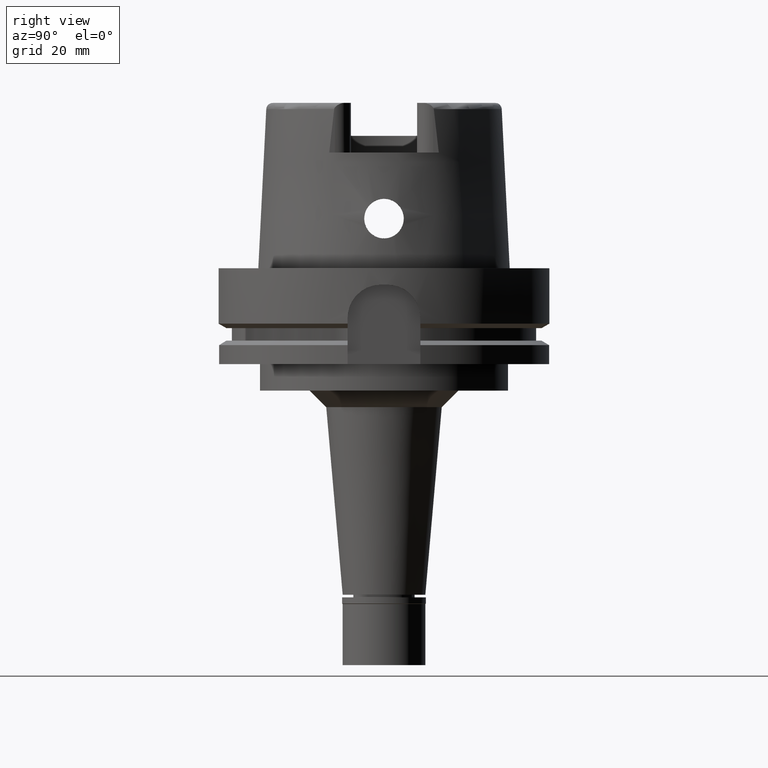
[diagram: clean part render]
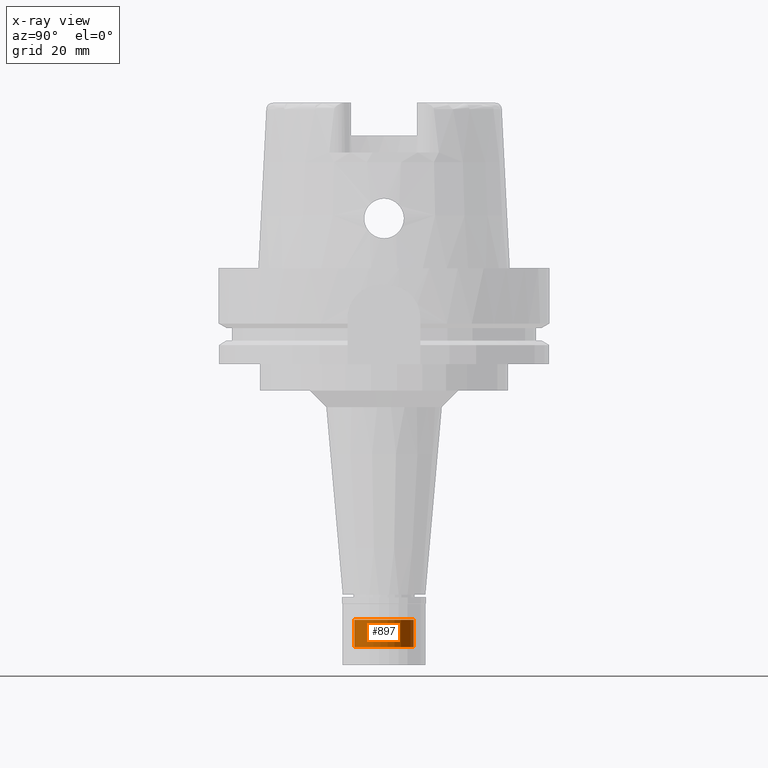
[diagram: x-ray — body ghosted, one internal face saturated and labeled with its STEP entity id]
A machine part, right view, then the same camera in x-ray: the body is ghosted and one INTERNAL B-rep face — a face not visible from any outside direction — is saturated and labeled: STEP entity #897.
In plain terms, the highlighted cylindrical surface (edge-blend (fillet) strip) has radius 9 mm, axis along (0, 0, -1).
Its self-contained STEP definition (entity closure, byte-faithful):
#74 = CARTESIAN_POINT ( 'NONE',  ( 0.0000000000000000000, 9.000000000000000000, -6.799999999999999822 ) ) ;
#142 = ORIENTED_EDGE ( 'NONE', *, *, #5465, .T. ) ;
#163 = EDGE_CURVE ( 'NONE', #950, #4541, #3006, .T. ) ;
#638 = VERTEX_POINT ( 'NONE', #4405 ) ;
#640 = CARTESIAN_POINT ( 'NONE',  ( 0.0000000000000000000, 0.0000000000000000000, 0.0000000000000000000 ) ) ;
#677 = DIRECTION ( 'NONE',  ( 0.0000000000000000000, -1.000000000000000000, 0.0000000000000000000 ) ) ;
#692 = ORIENTED_EDGE ( 'NONE', *, *, #3349, .T. ) ;
#757 = VECTOR ( 'NONE', #4892, 1000.000000000000000 ) ;
#897 = ADVANCED_FACE ( 'NONE', ( #3178 ), #1018, .F. ) ;
#950 = VERTEX_POINT ( 'NONE', #3683 ) ;
#1018 = CYLINDRICAL_SURFACE ( 'NONE', #1106, 9.000000000000000000 ) ;
#1106 = AXIS2_PLACEMENT_3D ( 'NONE', #640, #3634, #677 ) ;
#1520 = CARTESIAN_POINT ( 'NONE',  ( 0.0000000000000000000, 0.0000000000000000000, -15.00000000000000000 ) ) ;
#1759 = EDGE_LOOP ( 'NONE', ( #3264, #692, #142, #1778 ) ) ;
#1778 = ORIENTED_EDGE ( 'NONE', *, *, #163, .F. ) ;
#3006 = LINE ( 'NONE', #3370, #3535 ) ;
#3178 = FACE_OUTER_BOUND ( 'NONE', #1759, .T. ) ;
#3264 = ORIENTED_EDGE ( 'NONE', *, *, #4669, .T. ) ;
#3349 = EDGE_CURVE ( 'NONE', #5423, #638, #3674, .T. ) ;
#3370 = CARTESIAN_POINT ( 'NONE',  ( 0.0000000000000000000, 9.000000000000000000, -15.00000000000000000 ) ) ;
#3535 = VECTOR ( 'NONE', #5117, 1000.000000000000000 ) ;
#3634 = DIRECTION ( 'NONE',  ( 0.0000000000000000000, 0.0000000000000000000, -1.000000000000000000 ) ) ;
#3674 = LINE ( 'NONE', #5401, #757 ) ;
#3683 = CARTESIAN_POINT ( 'NONE',  ( 0.0000000000000000000, 9.000000000000000000, -15.00000000000000000 ) ) ;
#3921 = AXIS2_PLACEMENT_3D ( 'NONE', #1520, #5324, #4477 ) ;
#4097 = AXIS2_PLACEMENT_3D ( 'NONE', #4303, #4267, #4327 ) ;
#4267 = DIRECTION ( 'NONE',  ( 0.0000000000000000000, 0.0000000000000000000, 1.000000000000000000 ) ) ;
#4288 = CIRCLE ( 'NONE', #3921, 9.000000000000000000 ) ;
#4303 = CARTESIAN_POINT ( 'NONE',  ( 0.0000000000000000000, 0.0000000000000000000, -6.799999999999999822 ) ) ;
#4327 = DIRECTION ( 'NONE',  ( 0.0000000000000000000, -1.000000000000000000, 0.0000000000000000000 ) ) ;
#4405 = CARTESIAN_POINT ( 'NONE',  ( 0.0000000000000000000, -9.000000000000000000, -6.799999999999999822 ) ) ;
#4477 = DIRECTION ( 'NONE',  ( 0.0000000000000000000, 1.000000000000000000, 0.0000000000000000000 ) ) ;
#4541 = VERTEX_POINT ( 'NONE', #74 ) ;
#4550 = CIRCLE ( 'NONE', #4097, 9.000000000000000000 ) ;
#4669 = EDGE_CURVE ( 'NONE', #950, #5423, #4288, .T. ) ;
#4892 = DIRECTION ( 'NONE',  ( 0.0000000000000000000, 0.0000000000000000000, 1.000000000000000000 ) ) ;
#5117 = DIRECTION ( 'NONE',  ( 0.0000000000000000000, 0.0000000000000000000, 1.000000000000000000 ) ) ;
#5197 = CARTESIAN_POINT ( 'NONE',  ( 0.0000000000000000000, -9.000000000000000000, -15.00000000000000000 ) ) ;
#5324 = DIRECTION ( 'NONE',  ( 0.0000000000000000000, 0.0000000000000000000, -1.000000000000000000 ) ) ;
#5401 = CARTESIAN_POINT ( 'NONE',  ( 0.0000000000000000000, -9.000000000000000000, -15.00000000000000000 ) ) ;
#5423 = VERTEX_POINT ( 'NONE', #5197 ) ;
#5465 = EDGE_CURVE ( 'NONE', #638, #4541, #4550, .T. ) ;